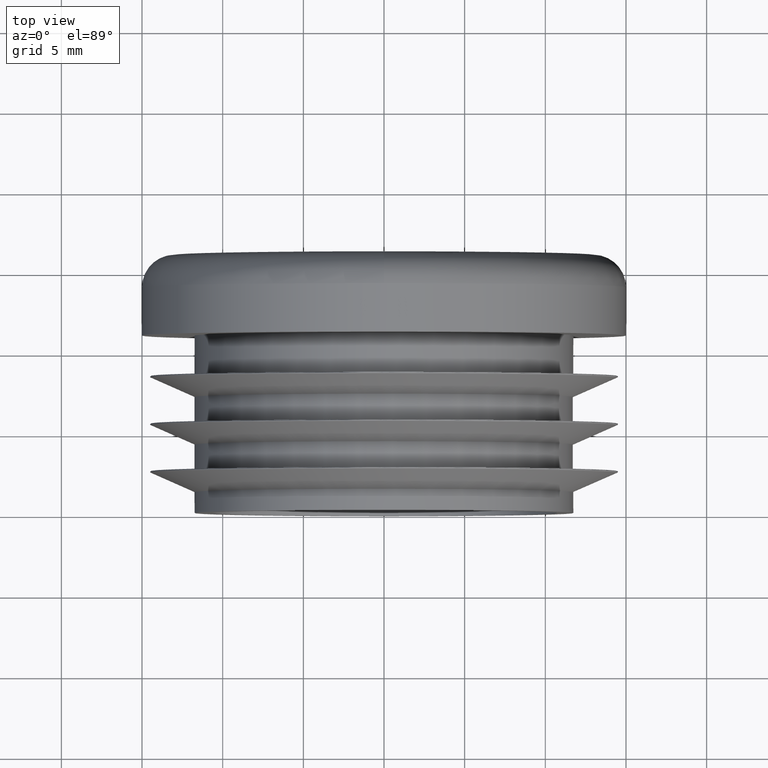
[diagram: clean part render]
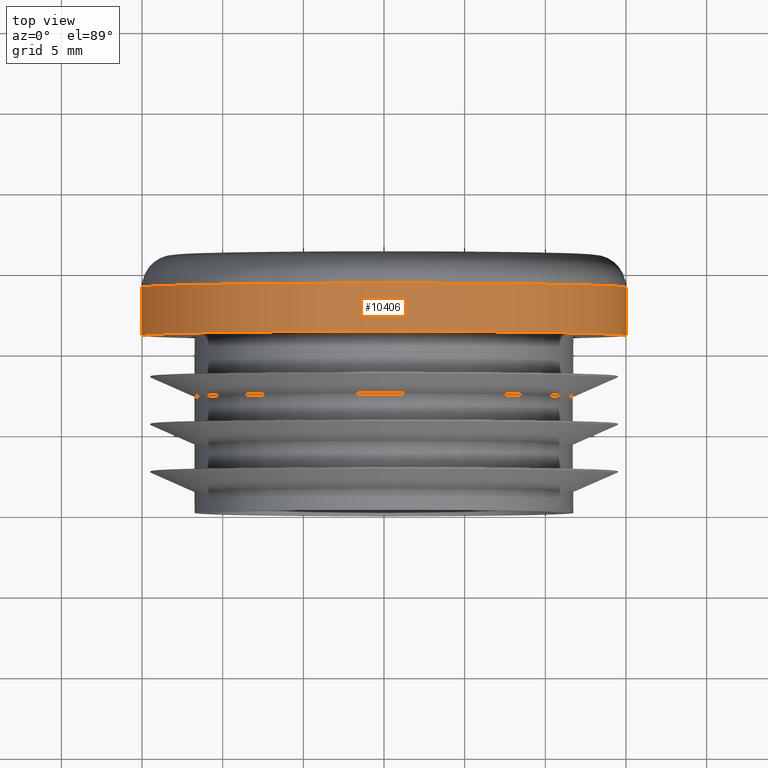
[diagram: same view with one face highlighted and labeled with its STEP entity id]
A machine part, top view. The second image highlights one B-rep face of the part: STEP entity #10406.
In plain terms, the highlighted cylindrical surface (bore or boss wall) has radius 15 mm, axis along (-0, -1, -0).
Its self-contained STEP definition (entity closure, byte-faithful):
#509 = VERTEX_POINT ( 'NONE', #806 ) ;
#806 = CARTESIAN_POINT ( 'NONE',  ( 0.000000000000000000, 11.00000000000000178, -14.99999999999999822 ) ) ;
#1215 = AXIS2_PLACEMENT_3D ( 'NONE', #4830, #4769, #10857 ) ;
#1244 = EDGE_LOOP ( 'NONE', ( #7417 ) ) ;
#1697 = DIRECTION ( 'NONE',  ( -0.000000000000000000, -1.000000000000000000, -0.000000000000000000 ) ) ;
#2015 = VERTEX_POINT ( 'NONE', #4359 ) ;
#2209 = EDGE_CURVE ( 'NONE', #509, #509, #10741, .T. ) ;
#2574 = DIRECTION ( 'NONE',  ( 0.000000000000000000, 0.000000000000000000, -1.000000000000000000 ) ) ;
#3591 = FACE_OUTER_BOUND ( 'NONE', #11079, .T. ) ;
#3611 = AXIS2_PLACEMENT_3D ( 'NONE', #5020, #6648, #6800 ) ;
#4359 = CARTESIAN_POINT ( 'NONE',  ( 0.000000000000000000, 14.00000000000000000, 14.99999999999999822 ) ) ;
#4769 = DIRECTION ( 'NONE',  ( -0.000000000000000000, -1.000000000000000000, -0.000000000000000000 ) ) ;
#4830 = CARTESIAN_POINT ( 'NONE',  ( 0.000000000000000000, 11.00000000000000178, 0.000000000000000000 ) ) ;
#5020 = CARTESIAN_POINT ( 'NONE',  ( 0.000000000000000000, 14.00000000000000000, 0.000000000000000000 ) ) ;
#5702 = ORIENTED_EDGE ( 'NONE', *, *, #2209, .F. ) ;
#6648 = DIRECTION ( 'NONE',  ( -0.000000000000000000, -1.000000000000000000, -0.000000000000000000 ) ) ;
#6800 = DIRECTION ( 'NONE',  ( 0.000000000000000000, 0.000000000000000000, 1.000000000000000000 ) ) ;
#7417 = ORIENTED_EDGE ( 'NONE', *, *, #9794, .T. ) ;
#7714 = AXIS2_PLACEMENT_3D ( 'NONE', #10019, #1697, #2574 ) ;
#8028 = CYLINDRICAL_SURFACE ( 'NONE', #7714, 14.99999999999999822 ) ;
#8168 = FACE_OUTER_BOUND ( 'NONE', #1244, .T. ) ;
#9794 = EDGE_CURVE ( 'NONE', #2015, #2015, #11029, .T. ) ;
#10019 = CARTESIAN_POINT ( 'NONE',  ( 0.000000000000000000, 11.00000000000000000, 0.000000000000000000 ) ) ;
#10406 = ADVANCED_FACE ( 'NONE', ( #8168, #3591 ), #8028, .T. ) ;
#10741 = CIRCLE ( 'NONE', #1215, 14.99999999999999822 ) ;
#10857 = DIRECTION ( 'NONE',  ( 0.000000000000000000, 0.000000000000000000, -1.000000000000000000 ) ) ;
#11029 = CIRCLE ( 'NONE', #3611, 14.99999999999999822 ) ;
#11079 = EDGE_LOOP ( 'NONE', ( #5702 ) ) ;